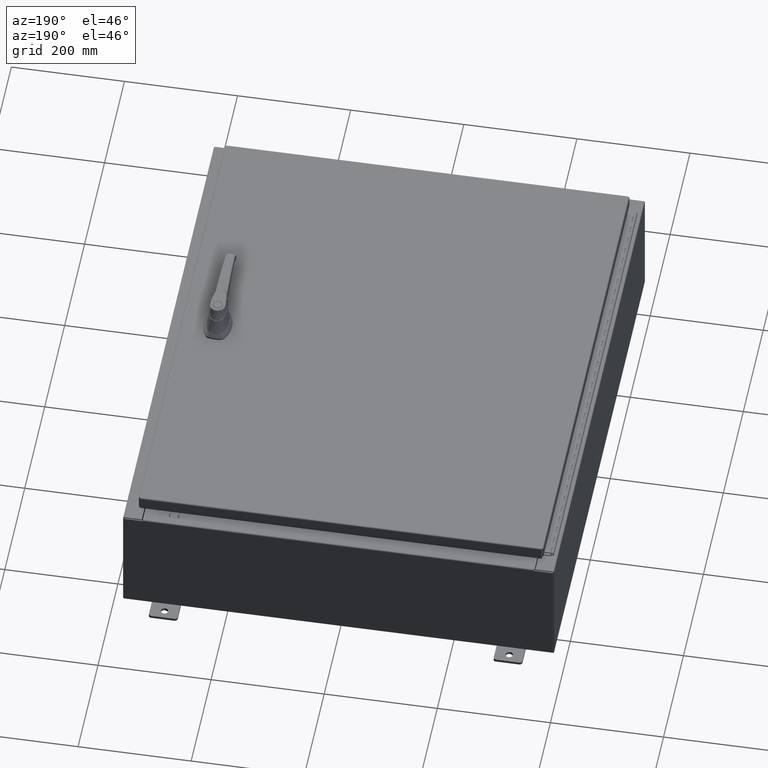
[diagram: clean part render]
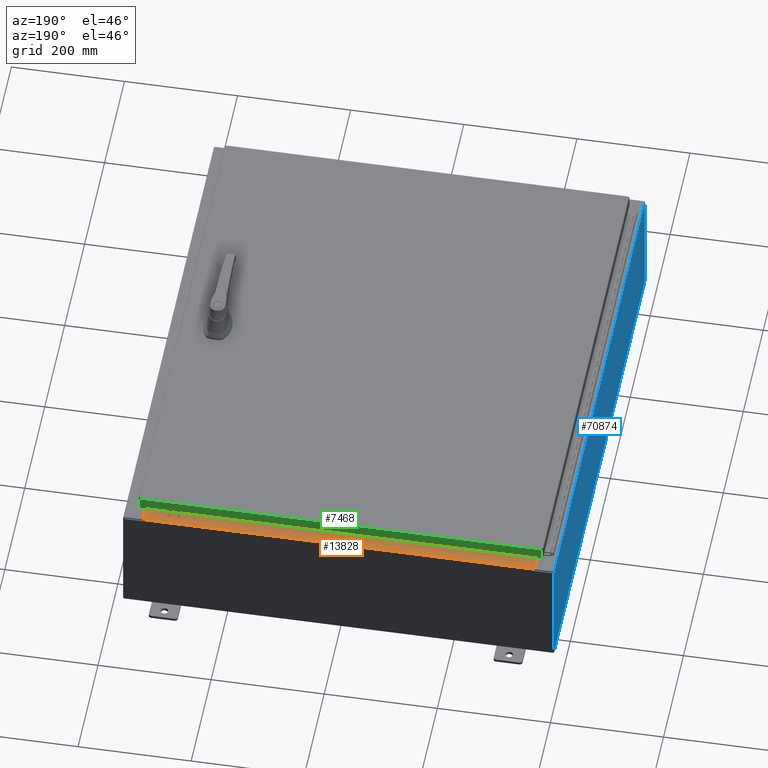
[diagram: same view with three faces highlighted in distinct colors, each labeled with its STEP entity id]
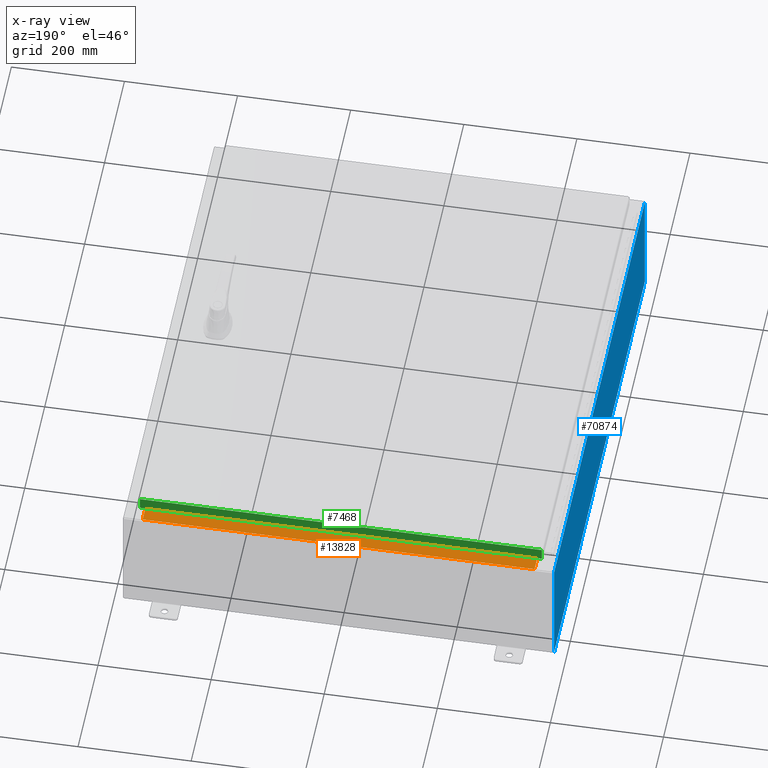
[diagram: x-ray of the same camera — body ghosted, the three highlighted faces saturated]
A machine part, auxiliary view with three faces highlighted in distinct colors.
The next image is the same camera in x-ray (body ghosted, the three faces saturated) — at least one of them is partly hidden behind the body in this view.
Their STEP definitions:

[orange] entity #13828 — the highlighted planar face has unit normal (0, 0, 1).
#2097 = CARTESIAN_POINT ( 'NONE',  ( 13.63720000000000400, -0.08769999999999965300, 4.000000000000000000 ) ) ;
#5944 = EDGE_CURVE ( 'NONE', #95267, #114704, #101327, .T. ) ;
#6027 = CARTESIAN_POINT ( 'NONE',  ( -13.63719999999999800, -0.08770000000000000000, 4.000000000000000000 ) ) ;
#7966 = EDGE_CURVE ( 'NONE', #114704, #118196, #60899, .T. ) ;
#13828 = ADVANCED_FACE ( 'NONE', ( #30606 ), #17545, .T. ) ;
#16671 = EDGE_CURVE ( 'NONE', #86655, #118196, #92704, .T. ) ;
#17545 = PLANE ( 'NONE',  #94351 ) ;
#21293 = CARTESIAN_POINT ( 'NONE',  ( -13.63719999999999800, -0.07469999999999973900, 4.000000000000000000 ) ) ;
#24184 = DIRECTION ( 'NONE',  ( -0.0000000000000000000, -1.000000000000000000, 3.566381192773190000E-015 ) ) ;
#25389 = EDGE_CURVE ( 'NONE', #86655, #95267, #63406, .T. ) ;
#27095 = DIRECTION ( 'NONE',  ( 0.0000000000000000000, 3.566381192773190000E-015, 1.000000000000000000 ) ) ;
#30606 = FACE_OUTER_BOUND ( 'NONE', #61139, .T. ) ;
#38696 = VECTOR ( 'NONE', #87694, 39.37007874015748100 ) ;
#39907 = ORIENTED_EDGE ( 'NONE', *, *, #25389, .F. ) ;
#50804 = VECTOR ( 'NONE', #79589, 39.37007874015748100 ) ;
#60851 = CARTESIAN_POINT ( 'NONE',  ( -13.63719999999999800, -1.287299999999999200, 4.000000000000004400 ) ) ;
#60899 = LINE ( 'NONE', #21293, #38696 ) ;
#61139 = EDGE_LOOP ( 'NONE', ( #111062, #107583, #39907, #112254 ) ) ;
#63406 = LINE ( 'NONE', #71488, #113986 ) ;
#64832 = CARTESIAN_POINT ( 'NONE',  ( 0.0000000000000000000, 1.425992975200418500E-014, 4.000000000000000000 ) ) ;
#71488 = CARTESIAN_POINT ( 'NONE',  ( 13.63720000000000400, -1.300299999999999800, 4.000000000000004400 ) ) ;
#77133 = DIRECTION ( 'NONE',  ( -1.000000000000000000, 2.003232330437526000E-017, -7.144290108027600900E-032 ) ) ;
#79589 = DIRECTION ( 'NONE',  ( -1.000000000000000000, 0.0000000000000000000, 0.0000000000000000000 ) ) ;
#86655 = VERTEX_POINT ( 'NONE', #2097 ) ;
#87694 = DIRECTION ( 'NONE',  ( -0.0000000000000000000, 1.000000000000000000, -3.566381192773190000E-015 ) ) ;
#88470 = CARTESIAN_POINT ( 'NONE',  ( 13.63720000000000400, -1.287299999999999900, 4.000000000000003600 ) ) ;
#92704 = LINE ( 'NONE', #115365, #112025 ) ;
#93494 = DIRECTION ( 'NONE',  ( 0.0000000000000000000, -1.000000000000000000, 3.566381192773190000E-015 ) ) ;
#94351 = AXIS2_PLACEMENT_3D ( 'NONE', #64832, #27095, #93494 ) ;
#95267 = VERTEX_POINT ( 'NONE', #110556 ) ;
#101327 = LINE ( 'NONE', #88470, #50804 ) ;
#107583 = ORIENTED_EDGE ( 'NONE', *, *, #5944, .F. ) ;
#110556 = CARTESIAN_POINT ( 'NONE',  ( 13.63720000000000400, -1.287299999999999900, 4.000000000000004400 ) ) ;
#111062 = ORIENTED_EDGE ( 'NONE', *, *, #7966, .F. ) ;
#112025 = VECTOR ( 'NONE', #77133, 39.37007874015748100 ) ;
#112254 = ORIENTED_EDGE ( 'NONE', *, *, #16671, .T. ) ;
#113986 = VECTOR ( 'NONE', #24184, 39.37007874015748100 ) ;
#114704 = VERTEX_POINT ( 'NONE', #60851 ) ;
#115365 = CARTESIAN_POINT ( 'NONE',  ( -1.756834753793995900E-018, -0.08770000000000000000, 4.000000000000000900 ) ) ;
#118196 = VERTEX_POINT ( 'NONE', #6027 ) ;

[blue] entity #70874 — the highlighted planar face has unit normal (1, 0, 0).
#4368 = DIRECTION ( 'NONE',  ( -0.0000000000000000000, 1.000000000000000000, -0.0000000000000000000 ) ) ;
#7451 = CARTESIAN_POINT ( 'NONE',  ( -15.00000000000000400, 0.0000000000000000000, -5.403395625144963300E-014 ) ) ;
#10500 = EDGE_CURVE ( 'NONE', #92843, #77104, #76869, .T. ) ;
#10561 = VECTOR ( 'NONE', #46561, 39.37007874015748100 ) ;
#16563 = CARTESIAN_POINT ( 'NONE',  ( -15.00000000000003200, -17.92530000000000000, 7.837599999999999200 ) ) ;
#17017 = DIRECTION ( 'NONE',  ( 3.584876173029202900E-015, 0.0000000000000000000, -1.000000000000000000 ) ) ;
#23733 = DIRECTION ( 'NONE',  ( 3.584876173029202900E-015, 0.0000000000000000000, -1.000000000000000000 ) ) ;
#29403 = VECTOR ( 'NONE', #4368, 39.37007874015748100 ) ;
#31222 = LINE ( 'NONE', #90156, #104025 ) ;
#33028 = CARTESIAN_POINT ( 'NONE',  ( -15.00000000000000400, 17.92530000000000000, 0.01299999999999984700 ) ) ;
#35778 = EDGE_CURVE ( 'NONE', #92843, #64705, #35804, .T. ) ;
#35804 = LINE ( 'NONE', #56111, #10561 ) ;
#39138 = AXIS2_PLACEMENT_3D ( 'NONE', #7451, #73838, #17017 ) ;
#46561 = DIRECTION ( 'NONE',  ( -3.584876173029202900E-015, 0.0000000000000000000, 1.000000000000000000 ) ) ;
#50607 = FACE_OUTER_BOUND ( 'NONE', #51476, .T. ) ;
#51476 = EDGE_LOOP ( 'NONE', ( #70346, #52800, #103713, #100822 ) ) ;
#52800 = ORIENTED_EDGE ( 'NONE', *, *, #57952, .T. ) ;
#56111 = CARTESIAN_POINT ( 'NONE',  ( -15.00000000000000400, -17.92530000000000000, -5.403395625144963300E-014 ) ) ;
#57952 = EDGE_CURVE ( 'NONE', #115453, #77104, #31222, .T. ) ;
#64292 = PLANE ( 'NONE',  #39138 ) ;
#64705 = VERTEX_POINT ( 'NONE', #16563 ) ;
#70346 = ORIENTED_EDGE ( 'NONE', *, *, #76778, .T. ) ;
#70874 = ADVANCED_FACE ( 'NONE', ( #50607 ), #64292, .F. ) ;
#72205 = CARTESIAN_POINT ( 'NONE',  ( -15.00000000000000400, 17.92530000000000000, 0.01299999999999983600 ) ) ;
#73838 = DIRECTION ( 'NONE',  ( 1.000000000000000000, 0.0000000000000000000, 3.584876173029202900E-015 ) ) ;
#76778 = EDGE_CURVE ( 'NONE', #64705, #115453, #104236, .T. ) ;
#76869 = LINE ( 'NONE', #33028, #29403 ) ;
#77104 = VERTEX_POINT ( 'NONE', #72205 ) ;
#78075 = DIRECTION ( 'NONE',  ( 0.0000000000000000000, 1.000000000000000000, 0.0000000000000000000 ) ) ;
#90156 = CARTESIAN_POINT ( 'NONE',  ( -15.00000000000000400, 17.92530000000000000, -5.403395625144963300E-014 ) ) ;
#92843 = VERTEX_POINT ( 'NONE', #107216 ) ;
#96813 = CARTESIAN_POINT ( 'NONE',  ( -15.00000000000003200, -17.92530000000000000, 7.837599999999999200 ) ) ;
#100822 = ORIENTED_EDGE ( 'NONE', *, *, #35778, .T. ) ;
#101243 = VECTOR ( 'NONE', #78075, 39.37007874015748100 ) ;
#103713 = ORIENTED_EDGE ( 'NONE', *, *, #10500, .F. ) ;
#104016 = CARTESIAN_POINT ( 'NONE',  ( -15.00000000000003200, 17.92530000000000000, 7.837599999999999200 ) ) ;
#104025 = VECTOR ( 'NONE', #23733, 39.37007874015748100 ) ;
#104236 = LINE ( 'NONE', #96813, #101243 ) ;
#107216 = CARTESIAN_POINT ( 'NONE',  ( -15.00000000000000400, -17.92530000000000000, 0.01299999999999984700 ) ) ;
#115453 = VERTEX_POINT ( 'NONE', #104016 ) ;

[green] entity #7468 — the highlighted planar face has unit normal (0, -1, -0).
#3556 = CARTESIAN_POINT ( 'NONE',  ( 13.98915786437626400, 17.09400000000000100, 4.354999984715570800E-014 ) ) ;
#7468 = ADVANCED_FACE ( 'NONE', ( #93689 ), #58934, .F. ) ;
#9025 = VECTOR ( 'NONE', #59134, 39.37007874015748100 ) ;
#14221 = VECTOR ( 'NONE', #99613, 39.37007874015748100 ) ;
#14988 = EDGE_CURVE ( 'NONE', #51773, #50464, #73613, .T. ) ;
#16016 = ORIENTED_EDGE ( 'NONE', *, *, #14988, .F. ) ;
#18320 = CARTESIAN_POINT ( 'NONE',  ( -14.07800000000000700, 17.09400000000000100, -0.08770000000000008300 ) ) ;
#34290 = LINE ( 'NONE', #96961, #9025 ) ;
#34790 = CARTESIAN_POINT ( 'NONE',  ( 13.98915786437626500, 17.09400000000000500, -0.9376999999999997600 ) ) ;
#45915 = CARTESIAN_POINT ( 'NONE',  ( -13.98915786437627800, 17.09400000000000100, -0.08770000000000118000 ) ) ;
#47749 = VERTEX_POINT ( 'NONE', #34790 ) ;
#48545 = ORIENTED_EDGE ( 'NONE', *, *, #76248, .F. ) ;
#50464 = VERTEX_POINT ( 'NONE', #77970 ) ;
#51773 = VERTEX_POINT ( 'NONE', #45915 ) ;
#51845 = DIRECTION ( 'NONE',  ( 3.194218701939437300E-031, -1.000000000000000000, -2.532419924601855800E-015 ) ) ;
#56761 = ORIENTED_EDGE ( 'NONE', *, *, #65526, .T. ) ;
#58934 = PLANE ( 'NONE',  #77168 ) ;
#59134 = DIRECTION ( 'NONE',  ( 1.000000000000000000, -0.0000000000000000000, 1.261330583805775800E-016 ) ) ;
#59922 = ORIENTED_EDGE ( 'NONE', *, *, #69381, .F. ) ;
#61385 = CARTESIAN_POINT ( 'NONE',  ( -13.98915786437627600, 17.09400000000000100, -0.07469999999999980800 ) ) ;
#65215 = VERTEX_POINT ( 'NONE', #85361 ) ;
#65526 = EDGE_CURVE ( 'NONE', #65215, #47749, #76399, .T. ) ;
#65772 = DIRECTION ( 'NONE',  ( 0.0000000000000000000, 2.532419924601855800E-015, -1.000000000000000000 ) ) ;
#69381 = EDGE_CURVE ( 'NONE', #65215, #51773, #87750, .T. ) ;
#69705 = CARTESIAN_POINT ( 'NONE',  ( -5.460197449095275600E-030, 17.09400000000000100, 4.354999984715570800E-014 ) ) ;
#73406 = VECTOR ( 'NONE', #107754, 39.37007874015748100 ) ;
#73613 = LINE ( 'NONE', #61385, #14221 ) ;
#75134 = DIRECTION ( 'NONE',  ( -1.000000000000000000, -5.159891749286783700E-031, 7.762034361881697200E-017 ) ) ;
#76248 = EDGE_CURVE ( 'NONE', #50464, #47749, #34290, .T. ) ;
#76399 = LINE ( 'NONE', #3556, #73406 ) ;
#77168 = AXIS2_PLACEMENT_3D ( 'NONE', #69705, #51845, #65772 ) ;
#77970 = CARTESIAN_POINT ( 'NONE',  ( -13.98915786437627600, 17.09400000000000500, -0.9377000000000033100 ) ) ;
#85361 = CARTESIAN_POINT ( 'NONE',  ( 13.98915786437626500, 17.09400000000000100, -0.08770000000000226200 ) ) ;
#87750 = LINE ( 'NONE', #18320, #90723 ) ;
#89528 = EDGE_LOOP ( 'NONE', ( #59922, #56761, #48545, #16016 ) ) ;
#90723 = VECTOR ( 'NONE', #75134, 39.37007874015748100 ) ;
#93689 = FACE_OUTER_BOUND ( 'NONE', #89528, .T. ) ;
#96961 = CARTESIAN_POINT ( 'NONE',  ( -14.07800000000000700, 17.09400000000000500, -0.9377000000000033100 ) ) ;
#99613 = DIRECTION ( 'NONE',  ( -0.0000000000000000000, 2.532419924601855800E-015, -1.000000000000000000 ) ) ;
#107754 = DIRECTION ( 'NONE',  ( 0.0000000000000000000, 2.532419924601855800E-015, -1.000000000000000000 ) ) ;